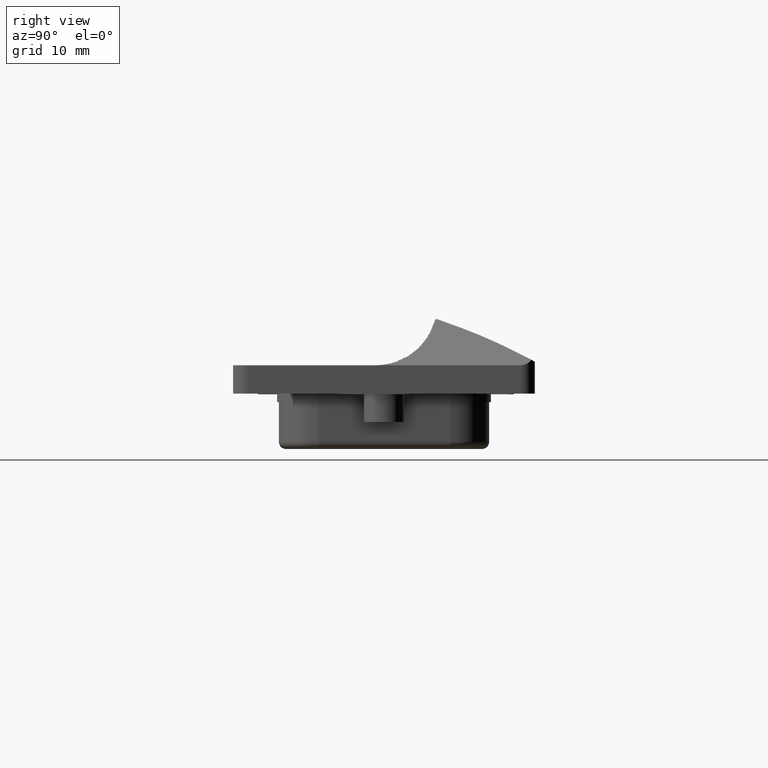
[diagram: clean part render]
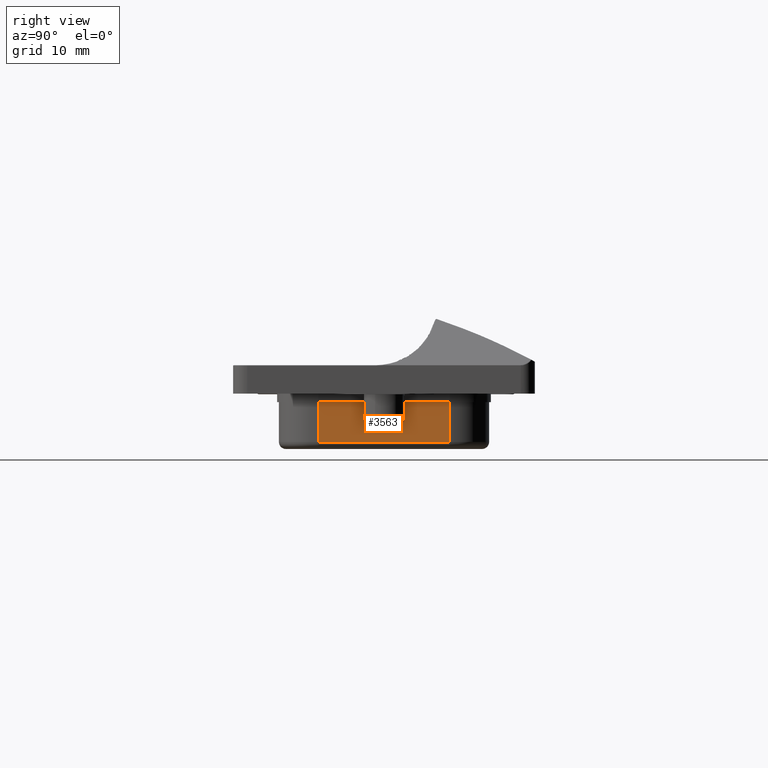
[diagram: same view with one face highlighted and labeled with its STEP entity id]
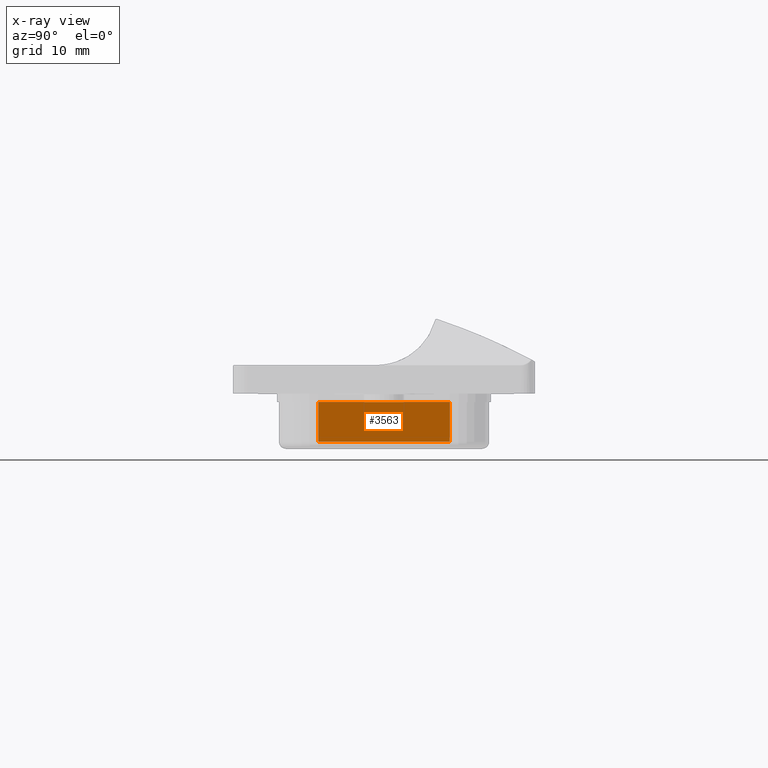
[diagram: x-ray of the same camera — body ghosted, the highlighted face saturated]
A machine part, right view. The second image highlights one B-rep face of the part: STEP entity #3563.
The next image is the same camera in x-ray: the body ghosted, the highlighted face saturated — about 0% of this face is hidden behind the body in this view.
In plain terms, the highlighted planar face has unit normal (1, 0, -0).
Its self-contained STEP definition (entity closure, byte-faithful):
#108=PLANE('',#3914);
#264=LINE('',#7039,#517);
#269=LINE('',#7061,#522);
#275=LINE('',#7077,#528);
#279=LINE('',#7088,#532);
#517=VECTOR('',#4688,18.5);
#522=VECTOR('',#4715,5.6);
#528=VECTOR('',#4733,5.6);
#532=VECTOR('',#4747,18.5);
#901=FACE_OUTER_BOUND('',#1120,.T.);
#1120=EDGE_LOOP('',(#3015,#3016,#3017,#3018));
#1661=VERTEX_POINT('',#7031);
#1663=VERTEX_POINT('',#7037);
#1669=VERTEX_POINT('',#7059);
#1673=VERTEX_POINT('',#7076);
#2121=EDGE_CURVE('',#1663,#1661,#264,.T.);
#2133=EDGE_CURVE('',#1669,#1663,#269,.T.);
#2140=EDGE_CURVE('',#1673,#1661,#275,.T.);
#2146=EDGE_CURVE('',#1673,#1669,#279,.T.);
#3015=ORIENTED_EDGE('',*,*,#2121,.F.);
#3016=ORIENTED_EDGE('',*,*,#2133,.F.);
#3017=ORIENTED_EDGE('',*,*,#2146,.F.);
#3018=ORIENTED_EDGE('',*,*,#2140,.T.);
#3563=ADVANCED_FACE('',(#901),#108,.T.);
#3914=AXIS2_PLACEMENT_3D('',#7087,#4745,#4746);
#4688=DIRECTION('',(2.40048221540574E-16,-1.,0.));
#4715=DIRECTION('',(0.,0.,-1.));
#4733=DIRECTION('',(0.,0.,-1.));
#4745=DIRECTION('center_axis',(1.,2.40048221540574E-16,0.));
#4746=DIRECTION('ref_axis',(0.,-1.,0.));
#4747=DIRECTION('',(-2.40048221540574E-16,1.,0.));
#7031=CARTESIAN_POINT('',(32.8,-9.25,-6.7));
#7037=CARTESIAN_POINT('',(32.8,9.25,-6.7));
#7039=CARTESIAN_POINT('',(32.8,4.625,-6.7));
#7059=CARTESIAN_POINT('',(32.8,9.25,-1.1));
#7061=CARTESIAN_POINT('',(32.8,9.25,-1.1));
#7076=CARTESIAN_POINT('',(32.8,-9.25,-1.1));
#7077=CARTESIAN_POINT('',(32.8,-9.25,-1.1));
#7087=CARTESIAN_POINT('Origin',(32.8,9.25,-1.1));
#7088=CARTESIAN_POINT('',(32.8,4.625,-1.1));